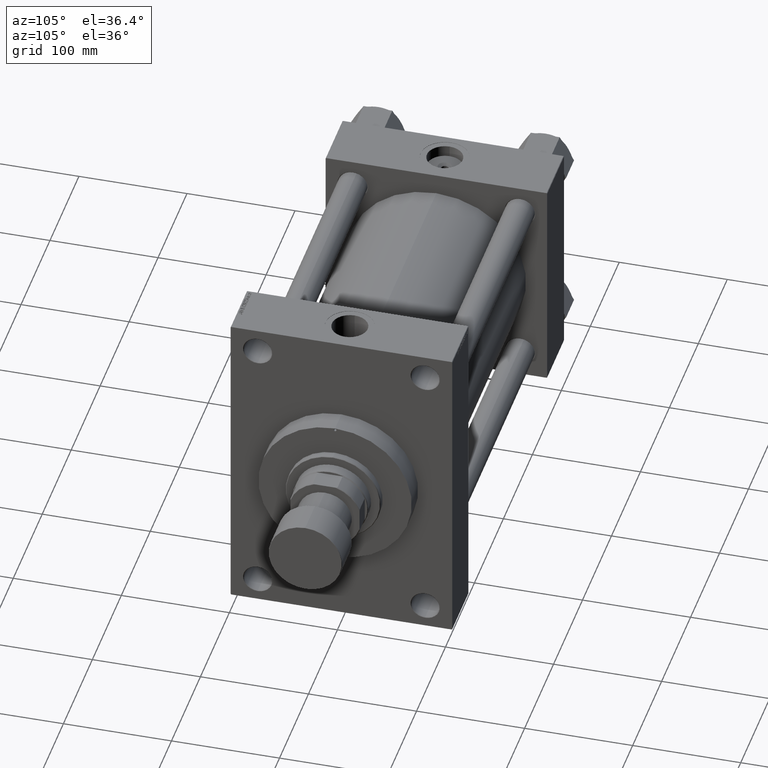
[diagram: clean part render]
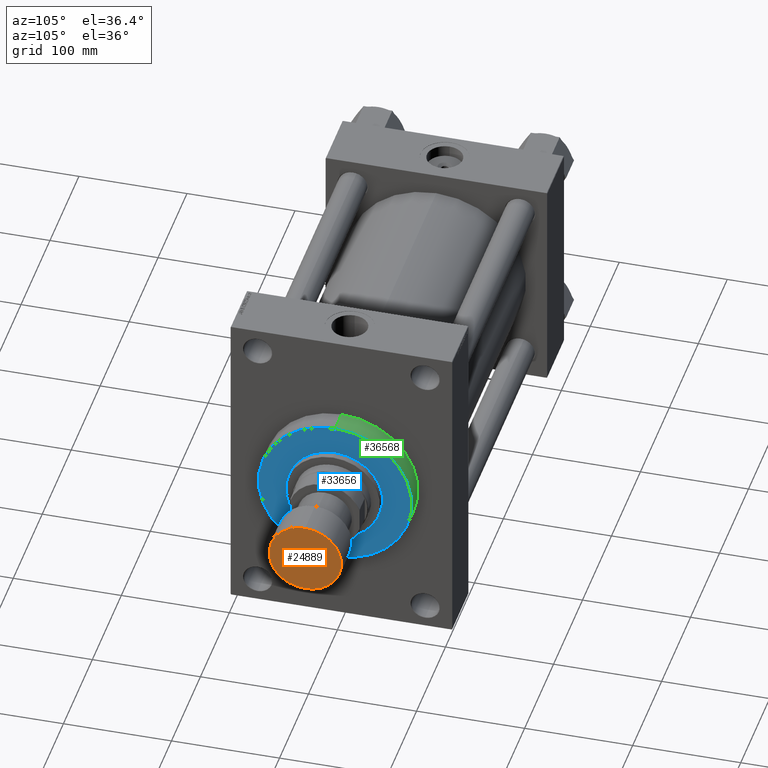
[diagram: same view with three faces highlighted in distinct colors, each labeled with its STEP entity id]
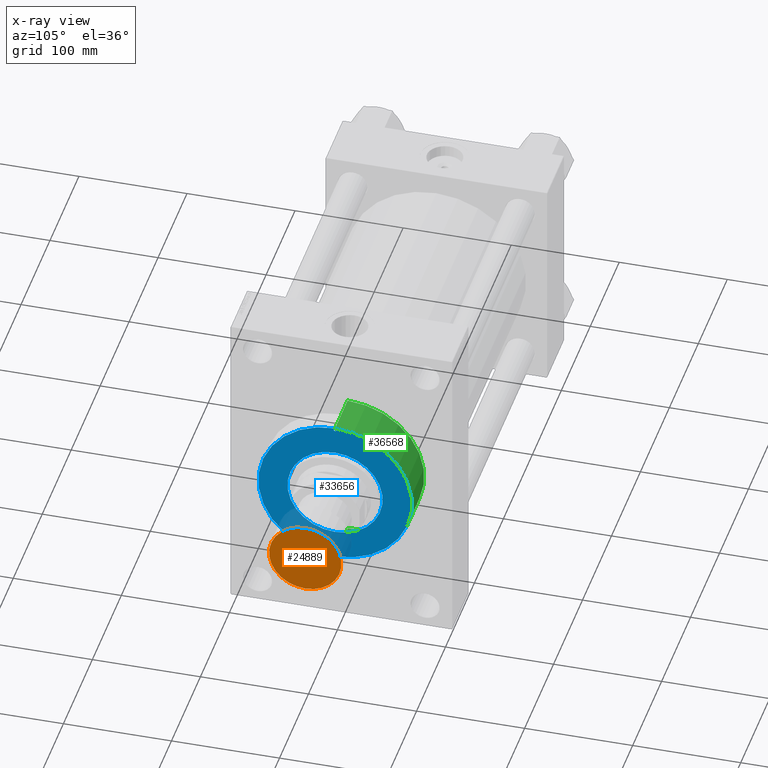
[diagram: x-ray of the same camera — body ghosted, the three highlighted faces saturated]
A machine part, auxiliary view with three faces highlighted in distinct colors.
The next image is the same camera in x-ray (body ghosted, the three faces saturated) — at least one of them is partly hidden behind the body in this view.
Their STEP definitions:

[orange] entity #24889 — the highlighted planar face has unit normal (1, 0, 0).
#2421 = EDGE_CURVE ( 'NONE', #25320, #37422, #43499, .T. ) ;
#4333 = ORIENTED_EDGE ( 'NONE', *, *, #2421, .T. ) ;
#8157 = DIRECTION ( 'NONE',  ( 1.000000000000000000, 0.000000000000000000, 0.000000000000000000 ) ) ;
#8478 = CARTESIAN_POINT ( 'NONE',  ( 0.000000000000000000, 0.000000000000000000, 0.000000000000000000 ) ) ;
#10026 = DIRECTION ( 'NONE',  ( 1.000000000000000000, 0.000000000000000000, -0.000000000000000000 ) ) ;
#10524 = DIRECTION ( 'NONE',  ( 0.000000000000000000, 0.000000000000000000, 1.000000000000000000 ) ) ;
#11343 = CARTESIAN_POINT ( 'NONE',  ( 0.000000000000000000, 0.000000000000000000, 0.000000000000000000 ) ) ;
#13891 = CARTESIAN_POINT ( 'NONE',  ( -33.50000000000000000, 4.133182947122317561E-15, 0.000000000000000000 ) ) ;
#14667 = AXIS2_PLACEMENT_3D ( 'NONE', #8478, #27537, #34858 ) ;
#15814 = CIRCLE ( 'NONE', #38371, 33.50000000000000000 ) ;
#20084 = EDGE_LOOP ( 'NONE', ( #23194, #4333 ) ) ;
#21511 = FACE_OUTER_BOUND ( 'NONE', #20084, .T. ) ;
#23194 = ORIENTED_EDGE ( 'NONE', *, *, #29400, .T. ) ;
#23621 = CARTESIAN_POINT ( 'NONE',  ( 33.50000000000000000, 0.000000000000000000, 0.000000000000000000 ) ) ;
#24889 = ADVANCED_FACE ( 'NONE', ( #21511 ), #40785, .T. ) ;
#25320 = VERTEX_POINT ( 'NONE', #13891 ) ;
#27537 = DIRECTION ( 'NONE',  ( 0.000000000000000000, 0.000000000000000000, 1.000000000000000000 ) ) ;
#29400 = EDGE_CURVE ( 'NONE', #37422, #25320, #15814, .T. ) ;
#34858 = DIRECTION ( 'NONE',  ( 1.000000000000000000, 0.000000000000000000, 0.000000000000000000 ) ) ;
#37422 = VERTEX_POINT ( 'NONE', #23621 ) ;
#38371 = AXIS2_PLACEMENT_3D ( 'NONE', #11343, #41368, #8157 ) ;
#40785 = PLANE ( 'NONE',  #42104 ) ;
#41368 = DIRECTION ( 'NONE',  ( 0.000000000000000000, 0.000000000000000000, 1.000000000000000000 ) ) ;
#42104 = AXIS2_PLACEMENT_3D ( 'NONE', #43480, #10524, #10026 ) ;
#43480 = CARTESIAN_POINT ( 'NONE',  ( 0.000000000000000000, 0.000000000000000000, 0.000000000000000000 ) ) ;
#43499 = CIRCLE ( 'NONE', #14667, 33.50000000000000000 ) ;

[blue] entity #33656 — the highlighted planar face has unit normal (1, -0, -0).
#481 = DIRECTION ( 'NONE',  ( -0.000000000000000000, -0.000000000000000000, 1.000000000000000000 ) ) ;
#736 = AXIS2_PLACEMENT_3D ( 'NONE', #23928, #9241, #13406 ) ;
#813 = FACE_BOUND ( 'NONE', #8778, .T. ) ;
#1756 = AXIS2_PLACEMENT_3D ( 'NONE', #10962, #24916, #7062 ) ;
#2528 = DIRECTION ( 'NONE',  ( 0.000000000000000000, 0.000000000000000000, 1.000000000000000000 ) ) ;
#3122 = VERTEX_POINT ( 'NONE', #29348 ) ;
#4573 = CIRCLE ( 'NONE', #17055, 1.250000000000001110 ) ;
#6899 = ORIENTED_EDGE ( 'NONE', *, *, #18042, .F. ) ;
#7062 = DIRECTION ( 'NONE',  ( 1.000000000000000000, 0.000000000000000000, -0.000000000000000000 ) ) ;
#7328 = DIRECTION ( 'NONE',  ( 1.000000000000000000, 0.000000000000000000, 0.000000000000000000 ) ) ;
#8242 = CARTESIAN_POINT ( 'NONE',  ( 71.00000000000001421, 8.694992273946208141E-15, 43.25999999999999801 ) ) ;
#8693 = VERTEX_POINT ( 'NONE', #27192 ) ;
#8778 = EDGE_LOOP ( 'NONE', ( #9032, #32867 ) ) ;
#9032 = ORIENTED_EDGE ( 'NONE', *, *, #18976, .F. ) ;
#9241 = DIRECTION ( 'NONE',  ( -0.000000000000000000, -0.000000000000000000, 1.000000000000000000 ) ) ;
#9286 = CIRCLE ( 'NONE', #736, 1.250000000000001110 ) ;
#9848 = VERTEX_POINT ( 'NONE', #29901 ) ;
#10781 = VERTEX_POINT ( 'NONE', #43856 ) ;
#10962 = CARTESIAN_POINT ( 'NONE',  ( 0.000000000000000000, 0.000000000000000000, 43.25999999999999801 ) ) ;
#12061 = FACE_BOUND ( 'NONE', #43587, .T. ) ;
#13406 = DIRECTION ( 'NONE',  ( 1.000000000000000000, 0.000000000000000000, 0.000000000000000000 ) ) ;
#13768 = ORIENTED_EDGE ( 'NONE', *, *, #21800, .T. ) ;
#14022 = ORIENTED_EDGE ( 'NONE', *, *, #42506, .T. ) ;
#14416 = EDGE_CURVE ( 'NONE', #38129, #8693, #24682, .T. ) ;
#14645 = PLANE ( 'NONE',  #1756 ) ;
#15364 = EDGE_CURVE ( 'NONE', #19783, #21512, #18522, .T. ) ;
#15507 = AXIS2_PLACEMENT_3D ( 'NONE', #37475, #29675, #40413 ) ;
#16371 = AXIS2_PLACEMENT_3D ( 'NONE', #47292, #16557, #42424 ) ;
#16557 = DIRECTION ( 'NONE',  ( -0.000000000000000000, -0.000000000000000000, 1.000000000000000000 ) ) ;
#16666 = CIRCLE ( 'NONE', #29146, 71.00000000000001421 ) ;
#16772 = EDGE_CURVE ( 'NONE', #8693, #38129, #30310, .T. ) ;
#17055 = AXIS2_PLACEMENT_3D ( 'NONE', #34468, #38346, #43870 ) ;
#18042 = EDGE_CURVE ( 'NONE', #21512, #19783, #4573, .T. ) ;
#18522 = CIRCLE ( 'NONE', #46562, 1.250000000000001110 ) ;
#18770 = DIRECTION ( 'NONE',  ( 0.000000000000000000, 0.000000000000000000, 1.000000000000000000 ) ) ;
#18976 = EDGE_CURVE ( 'NONE', #9848, #10781, #9286, .T. ) ;
#19783 = VERTEX_POINT ( 'NONE', #29162 ) ;
#20346 = EDGE_CURVE ( 'NONE', #10781, #9848, #24943, .T. ) ;
#21512 = VERTEX_POINT ( 'NONE', #32843 ) ;
#21800 = EDGE_CURVE ( 'NONE', #23617, #3122, #24055, .T. ) ;
#22735 = CARTESIAN_POINT ( 'NONE',  ( 0.000000000000000000, 0.000000000000000000, 43.25999999999999801 ) ) ;
#23140 = ORIENTED_EDGE ( 'NONE', *, *, #16772, .F. ) ;
#23617 = VERTEX_POINT ( 'NONE', #8242 ) ;
#23928 = CARTESIAN_POINT ( 'NONE',  ( -69.25000000000000000, 0.000000000000000000, 43.25999999999999801 ) ) ;
#24055 = CIRCLE ( 'NONE', #15507, 71.00000000000001421 ) ;
#24682 = CIRCLE ( 'NONE', #34386, 44.00000000000000000 ) ;
#24916 = DIRECTION ( 'NONE',  ( 0.000000000000000000, 0.000000000000000000, 1.000000000000000000 ) ) ;
#24943 = CIRCLE ( 'NONE', #16371, 1.250000000000001110 ) ;
#26964 = FACE_OUTER_BOUND ( 'NONE', #36511, .T. ) ;
#27192 = CARTESIAN_POINT ( 'NONE',  ( 44.00000000000000000, 5.388445916248353619E-15, 43.25999999999999801 ) ) ;
#28430 = DIRECTION ( 'NONE',  ( 1.000000000000000000, 0.000000000000000000, 0.000000000000000000 ) ) ;
#29146 = AXIS2_PLACEMENT_3D ( 'NONE', #33908, #18770, #37801 ) ;
#29162 = CARTESIAN_POINT ( 'NONE',  ( 68.00000000000000000, 1.530808498934193050E-16, 43.25999999999999801 ) ) ;
#29348 = CARTESIAN_POINT ( 'NONE',  ( -71.00000000000001421, 0.000000000000000000, 43.25999999999999801 ) ) ;
#29675 = DIRECTION ( 'NONE',  ( 0.000000000000000000, 0.000000000000000000, 1.000000000000000000 ) ) ;
#29901 = CARTESIAN_POINT ( 'NONE',  ( -68.00000000000000000, 0.000000000000000000, 43.25999999999999801 ) ) ;
#30310 = CIRCLE ( 'NONE', #46632, 44.00000000000000000 ) ;
#30617 = FACE_BOUND ( 'NONE', #32151, .T. ) ;
#32151 = EDGE_LOOP ( 'NONE', ( #6899, #44521 ) ) ;
#32843 = CARTESIAN_POINT ( 'NONE',  ( 70.50000000000000000, 0.000000000000000000, 43.25999999999999801 ) ) ;
#32867 = ORIENTED_EDGE ( 'NONE', *, *, #20346, .F. ) ;
#33656 = ADVANCED_FACE ( 'NONE', ( #813, #30617, #12061, #26964 ), #14645, .T. ) ;
#33908 = CARTESIAN_POINT ( 'NONE',  ( 0.000000000000000000, 0.000000000000000000, 43.25999999999999801 ) ) ;
#33954 = CARTESIAN_POINT ( 'NONE',  ( 69.25000000000000000, 0.000000000000000000, 43.25999999999999801 ) ) ;
#34386 = AXIS2_PLACEMENT_3D ( 'NONE', #38835, #34951, #34483 ) ;
#34468 = CARTESIAN_POINT ( 'NONE',  ( 69.25000000000000000, 0.000000000000000000, 43.25999999999999801 ) ) ;
#34483 = DIRECTION ( 'NONE',  ( 1.000000000000000000, 0.000000000000000000, 0.000000000000000000 ) ) ;
#34951 = DIRECTION ( 'NONE',  ( 0.000000000000000000, 0.000000000000000000, 1.000000000000000000 ) ) ;
#36511 = EDGE_LOOP ( 'NONE', ( #14022, #13768 ) ) ;
#37475 = CARTESIAN_POINT ( 'NONE',  ( 0.000000000000000000, 0.000000000000000000, 43.25999999999999801 ) ) ;
#37801 = DIRECTION ( 'NONE',  ( 1.000000000000000000, 0.000000000000000000, 0.000000000000000000 ) ) ;
#38129 = VERTEX_POINT ( 'NONE', #41538 ) ;
#38346 = DIRECTION ( 'NONE',  ( -0.000000000000000000, -0.000000000000000000, 1.000000000000000000 ) ) ;
#38835 = CARTESIAN_POINT ( 'NONE',  ( 0.000000000000000000, 0.000000000000000000, 43.25999999999999801 ) ) ;
#40413 = DIRECTION ( 'NONE',  ( 1.000000000000000000, 0.000000000000000000, 0.000000000000000000 ) ) ;
#41538 = CARTESIAN_POINT ( 'NONE',  ( -44.00000000000000000, 0.000000000000000000, 43.25999999999999801 ) ) ;
#42424 = DIRECTION ( 'NONE',  ( 1.000000000000000000, 0.000000000000000000, 0.000000000000000000 ) ) ;
#42506 = EDGE_CURVE ( 'NONE', #3122, #23617, #16666, .T. ) ;
#43587 = EDGE_LOOP ( 'NONE', ( #47440, #23140 ) ) ;
#43856 = CARTESIAN_POINT ( 'NONE',  ( -70.50000000000000000, 1.530808498934193050E-16, 43.25999999999999801 ) ) ;
#43870 = DIRECTION ( 'NONE',  ( 1.000000000000000000, 0.000000000000000000, 0.000000000000000000 ) ) ;
#44521 = ORIENTED_EDGE ( 'NONE', *, *, #15364, .F. ) ;
#46562 = AXIS2_PLACEMENT_3D ( 'NONE', #33954, #481, #7328 ) ;
#46632 = AXIS2_PLACEMENT_3D ( 'NONE', #22735, #2528, #28430 ) ;
#47292 = CARTESIAN_POINT ( 'NONE',  ( -69.25000000000000000, 0.000000000000000000, 43.25999999999999801 ) ) ;
#47440 = ORIENTED_EDGE ( 'NONE', *, *, #14416, .F. ) ;

[green] entity #36568 — the highlighted cylindrical surface (partial cylindrical patch) has radius 71 mm, axis along (-1, 0, 0).
#406 = CARTESIAN_POINT ( 'NONE',  ( -71.00000000000001421, 0.000000000000000000, 43.25999999999999801 ) ) ;
#2772 = ORIENTED_EDGE ( 'NONE', *, *, #30285, .T. ) ;
#3122 = VERTEX_POINT ( 'NONE', #29348 ) ;
#3309 = ORIENTED_EDGE ( 'NONE', *, *, #42506, .F. ) ;
#5460 = VECTOR ( 'NONE', #42945, 1000.000000000000000 ) ;
#7743 = FACE_OUTER_BOUND ( 'NONE', #12927, .T. ) ;
#8242 = CARTESIAN_POINT ( 'NONE',  ( 71.00000000000001421, 8.694992273946208141E-15, 43.25999999999999801 ) ) ;
#11225 = CARTESIAN_POINT ( 'NONE',  ( -71.00000000000001421, 0.000000000000000000, 0.000000000000000000 ) ) ;
#12927 = EDGE_LOOP ( 'NONE', ( #42347, #3309, #28530, #2772 ) ) ;
#13404 = LINE ( 'NONE', #47337, #5460 ) ;
#14836 = LINE ( 'NONE', #406, #25215 ) ;
#16666 = CIRCLE ( 'NONE', #29146, 71.00000000000001421 ) ;
#18273 = CYLINDRICAL_SURFACE ( 'NONE', #33822, 71.00000000000001421 ) ;
#18747 = CARTESIAN_POINT ( 'NONE',  ( 0.000000000000000000, 0.000000000000000000, 0.000000000000000000 ) ) ;
#18770 = DIRECTION ( 'NONE',  ( 0.000000000000000000, 0.000000000000000000, 1.000000000000000000 ) ) ;
#22165 = CARTESIAN_POINT ( 'NONE',  ( 0.000000000000000000, 0.000000000000000000, 43.25999999999999801 ) ) ;
#23617 = VERTEX_POINT ( 'NONE', #8242 ) ;
#24153 = EDGE_CURVE ( 'NONE', #23617, #27585, #13404, .T. ) ;
#25188 = AXIS2_PLACEMENT_3D ( 'NONE', #18747, #29259, #36567 ) ;
#25215 = VECTOR ( 'NONE', #29483, 1000.000000000000000 ) ;
#27585 = VERTEX_POINT ( 'NONE', #28621 ) ;
#28530 = ORIENTED_EDGE ( 'NONE', *, *, #44129, .T. ) ;
#28621 = CARTESIAN_POINT ( 'NONE',  ( 71.00000000000001421, 8.694992273946208141E-15, 0.000000000000000000 ) ) ;
#29146 = AXIS2_PLACEMENT_3D ( 'NONE', #33908, #18770, #37801 ) ;
#29259 = DIRECTION ( 'NONE',  ( 0.000000000000000000, 0.000000000000000000, 1.000000000000000000 ) ) ;
#29267 = DIRECTION ( 'NONE',  ( -1.000000000000000000, 0.000000000000000000, 0.000000000000000000 ) ) ;
#29348 = CARTESIAN_POINT ( 'NONE',  ( -71.00000000000001421, 0.000000000000000000, 43.25999999999999801 ) ) ;
#29483 = DIRECTION ( 'NONE',  ( -0.000000000000000000, -0.000000000000000000, -1.000000000000000000 ) ) ;
#29882 = VERTEX_POINT ( 'NONE', #11225 ) ;
#30285 = EDGE_CURVE ( 'NONE', #29882, #27585, #40742, .T. ) ;
#33822 = AXIS2_PLACEMENT_3D ( 'NONE', #22165, #36810, #29267 ) ;
#33908 = CARTESIAN_POINT ( 'NONE',  ( 0.000000000000000000, 0.000000000000000000, 43.25999999999999801 ) ) ;
#36567 = DIRECTION ( 'NONE',  ( 1.000000000000000000, 0.000000000000000000, 0.000000000000000000 ) ) ;
#36568 = ADVANCED_FACE ( 'NONE', ( #7743 ), #18273, .T. ) ;
#36810 = DIRECTION ( 'NONE',  ( -0.000000000000000000, -0.000000000000000000, -1.000000000000000000 ) ) ;
#37801 = DIRECTION ( 'NONE',  ( 1.000000000000000000, 0.000000000000000000, 0.000000000000000000 ) ) ;
#40742 = CIRCLE ( 'NONE', #25188, 71.00000000000001421 ) ;
#42347 = ORIENTED_EDGE ( 'NONE', *, *, #24153, .F. ) ;
#42506 = EDGE_CURVE ( 'NONE', #3122, #23617, #16666, .T. ) ;
#42945 = DIRECTION ( 'NONE',  ( -0.000000000000000000, -0.000000000000000000, -1.000000000000000000 ) ) ;
#44129 = EDGE_CURVE ( 'NONE', #3122, #29882, #14836, .T. ) ;
#47337 = CARTESIAN_POINT ( 'NONE',  ( 71.00000000000001421, 8.694992273946208141E-15, 43.25999999999999801 ) ) ;